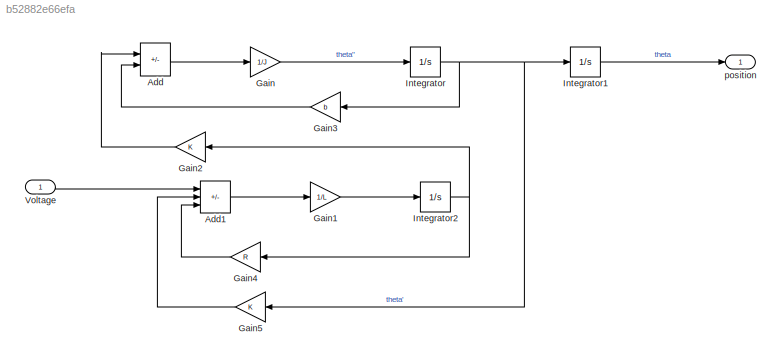
MODEL slx_b52882e66efa
KIND model
CONFIG AbsTol = auto
CONFIG EnableMultiTasking = off
CONFIG FixedStep = auto
CONFIG MaxStep = auto
CONFIG MinStep = auto
CONFIG RelTol = 1e-3
CONFIG SampleTimeConstraint = Unconstrained
CONFIG SolverName = ode15s
CONFIG StartTime = 0.0
CONFIG StopTime = 0.2
WORKSPACE source: mxarray member
WORKSPACE J = 3.2284e-06
WORKSPACE K = 0.0274
WORKSPACE L = 2.75e-06
WORKSPACE R = 4
WORKSPACE b = 3.5077e-06
BLOCK [Sum] Add
  IconShape = rectangular
  Inputs = +-
  Ports = [2, 1]
BLOCK [Sum] Add1
  IconShape = rectangular
  Inputs = +--
  Ports = [3, 1]
BLOCK [Gain] Gain
  Gain = 1/J
BLOCK [Gain] Gain1
  Gain = 1/L
BLOCK [Gain] Gain2
  Gain = K
  NameLocation = top
BLOCK [Gain] Gain3
  Gain = b
  NameLocation = top
BLOCK [Gain] Gain4
  Gain = R
  NameLocation = top
BLOCK [Gain] Gain5
  Gain = K
  NameLocation = top
BLOCK [Integrator] Integrator
  Ports = [1, 1]
BLOCK [Integrator] Integrator1
  Ports = [1, 1]
BLOCK [Integrator] Integrator2
  Ports = [1, 1]
BLOCK [Inport] Voltage
  OutDataTypeStr = double
  PortDimensions = 1
  SamplingMode = Sample based
  SignalType = real
BLOCK [Outport] position
  OutDataTypeStr = double
  PortDimensions = 1
  SampleTime = 0
  SamplingMode = Sample based
  SignalType = real
LINE Add1:1 -> Gain1:1
LINE Add:1 -> Gain:1
LINE Gain1:1 -> Integrator2:1
LINE Gain2:1 -> Add:1
LINE Gain3:1 -> Add:2
LINE Gain4:1 -> Add1:3
LINE Gain5:1 -> Add1:2
LINE Gain:1 -> Integrator:1
LINE Integrator1:1 -> position:1
NET Integrator2:1 -> Gain2:1, Gain4:1
NET Integrator:1 -> Gain3:1, Gain5:1, Integrator1:1
LINE Voltage:1 -> Add1:1
note: NET lines group one-source signal fan-out (src -> all destinations, sorted); 1:1 wires keep LINE
